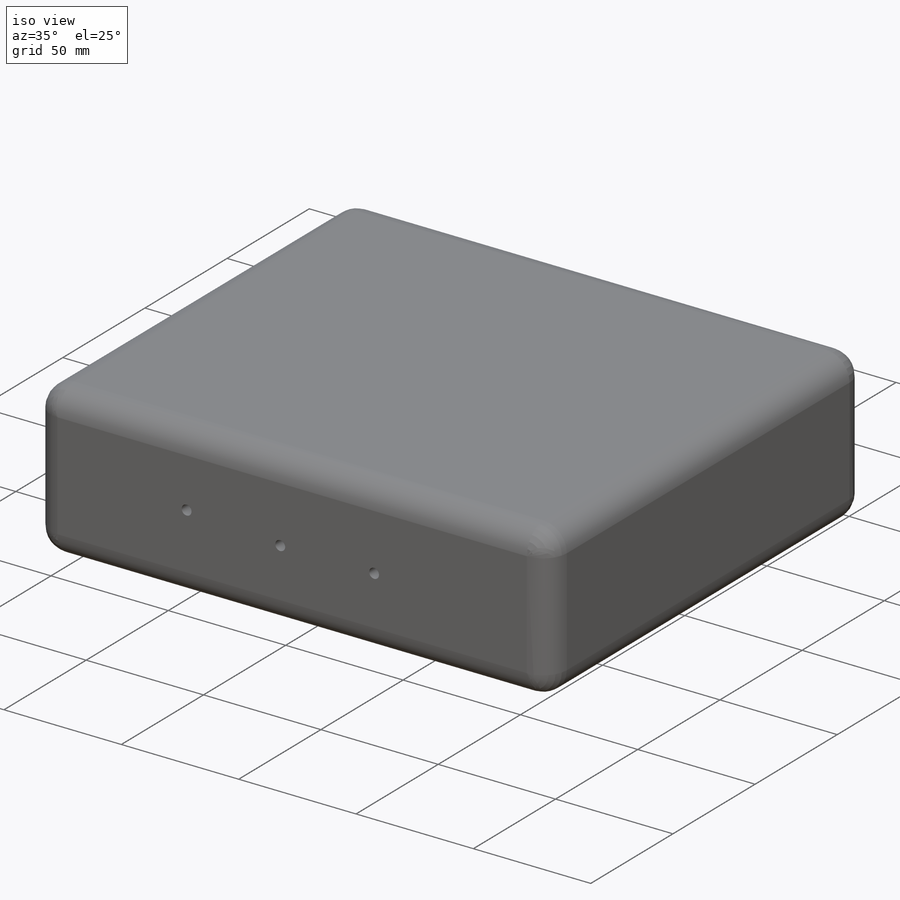
[diagram: iso view]
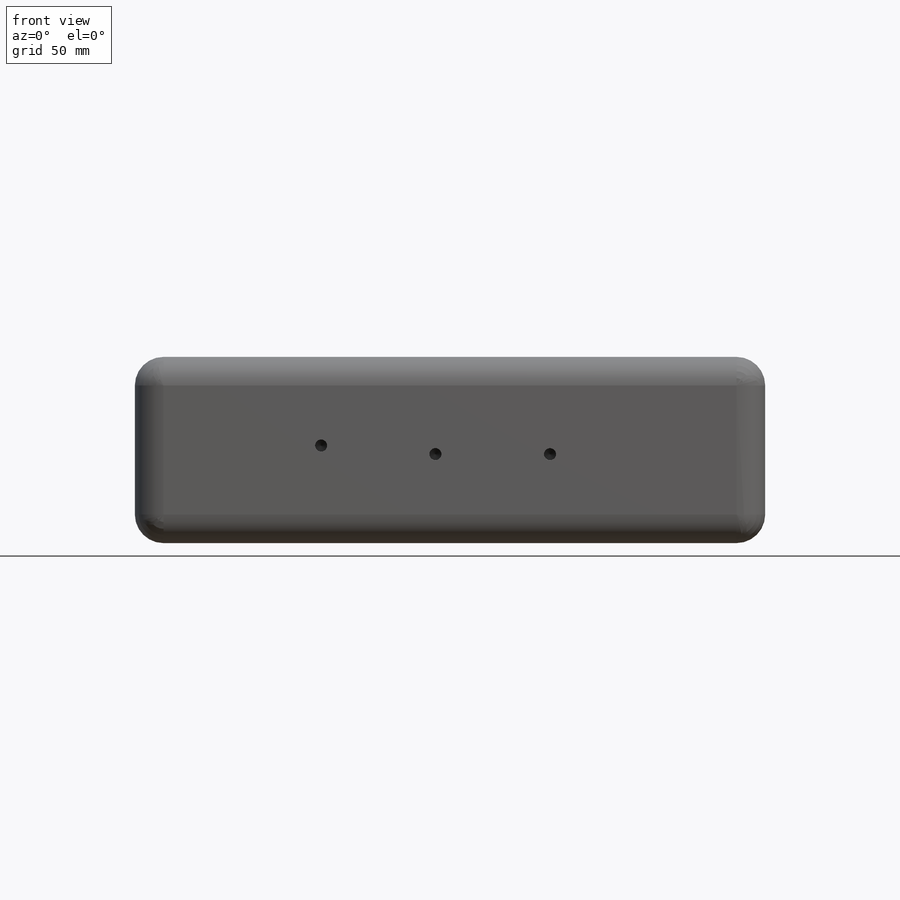
[diagram: front view]
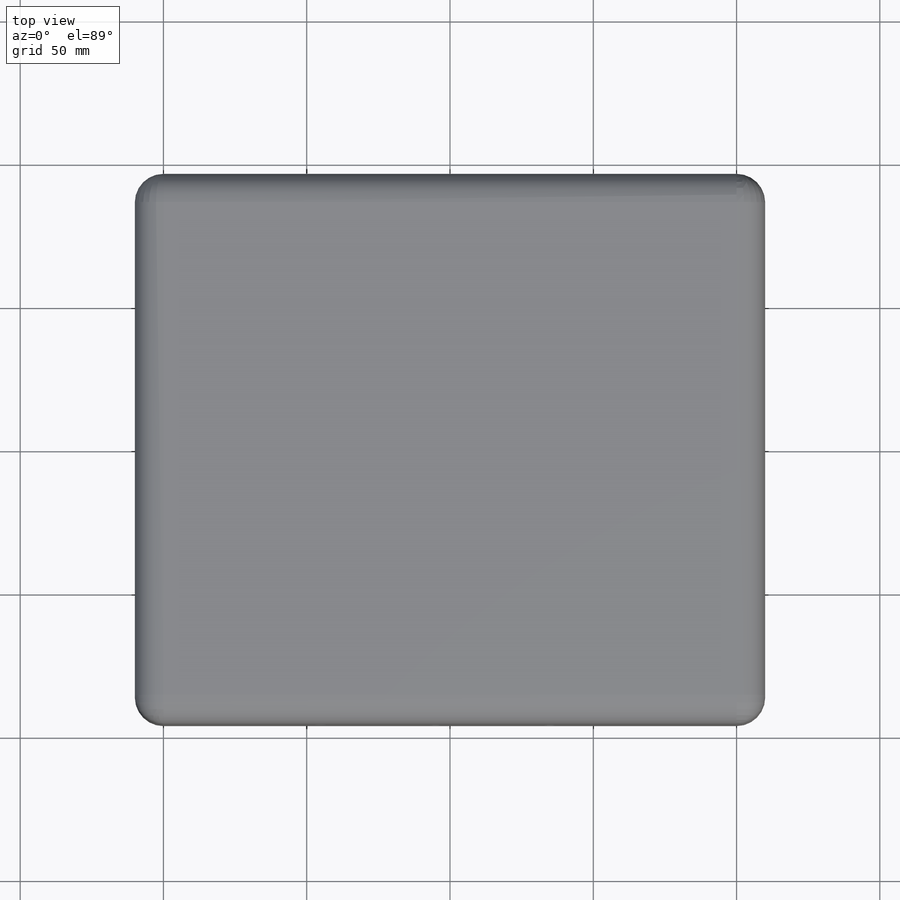
[diagram: top view]
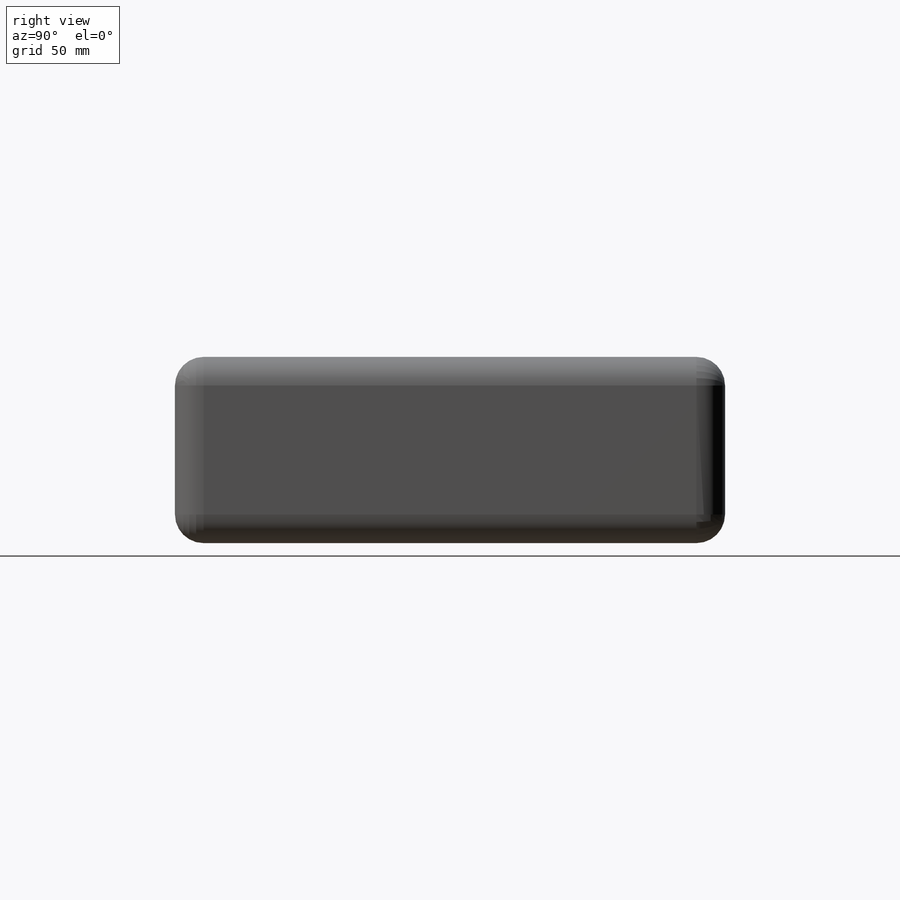
[diagram: right view]
SOLIDWORKS PART (.sldprt)
format: sldprt  version: not decoded by parser v0  size: 266,240 bytes
history: native  units: mm
features: sketch x5, hole x2, material x1, extrude x1, fillet x1 (+13 scaffold rows collapsed)
feature tree (23):
  scaffold x13  (default folders/planes/origin — collapsed)
  material  "Material <not specified>"
  sketch  "Sketch1"  dims[D1=220.0mm D2=192.0mm]
  extrude  "Boss-Extrude1"  Depth=65mm
  fillet  "Fillet1"  Radius=10mm
  hole  "Ø4.2 (4.2) Diameter Hole1"  Diameter=4.2mm Depth=10mm
  sketch  "Sketch3"  dims[c1.D1=40.0mm c1.D2=40.0mm c1.D3=65.0mm c1.D4=~67.430209mm c2.D3=65.0mm c2.D4=31.0mm]
  sketch  "Sketch2"  dims[hole-wizard template sketch: 47 standard entries collapsed; hole parameters kept: c15.Hole Depth=10.0mm c15.D3=~14.816244mm c15.Drill Angle=118.0deg]
  hole  "Ø4.2 (4.2) Diameter Hole2"  Diameter=4.2mm Depth=10mm
  sketch  "Sketch4"  dims[c1.D1=40.0mm c1.D2=40.0mm c1.D3=65.0mm c1.D4=~67.430209mm c2.D3=65.0mm c2.D4=31.0mm c3.D3=65.0mm c3.D4=31.0mm]
  sketch  "Sketch5"  dims[hole-wizard template sketch: 47 standard entries collapsed; hole parameters kept: c15.Hole Depth=10.0mm c15.D3=~14.816244mm c15.Drill Angle=118.0deg]
decode coverage: 9 of 9 modeling features carry decoded parameters
note: ~ marks probable driven/reference dimensions
note: suppression state not decoded; provenance and decode notes live in map.json
